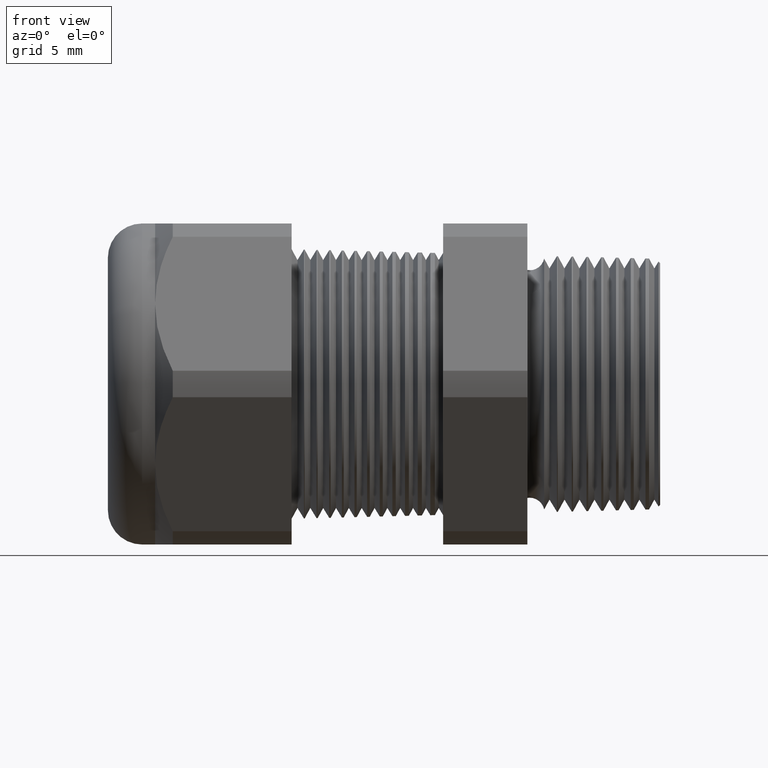
[diagram: clean part render]
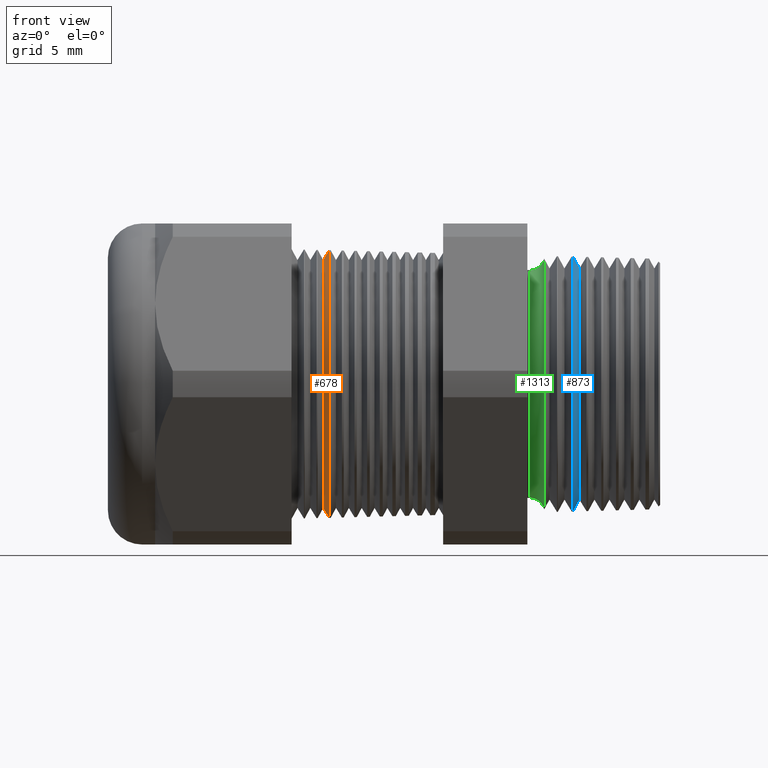
[diagram: same view with three faces highlighted in distinct colors, each labeled with its STEP entity id]
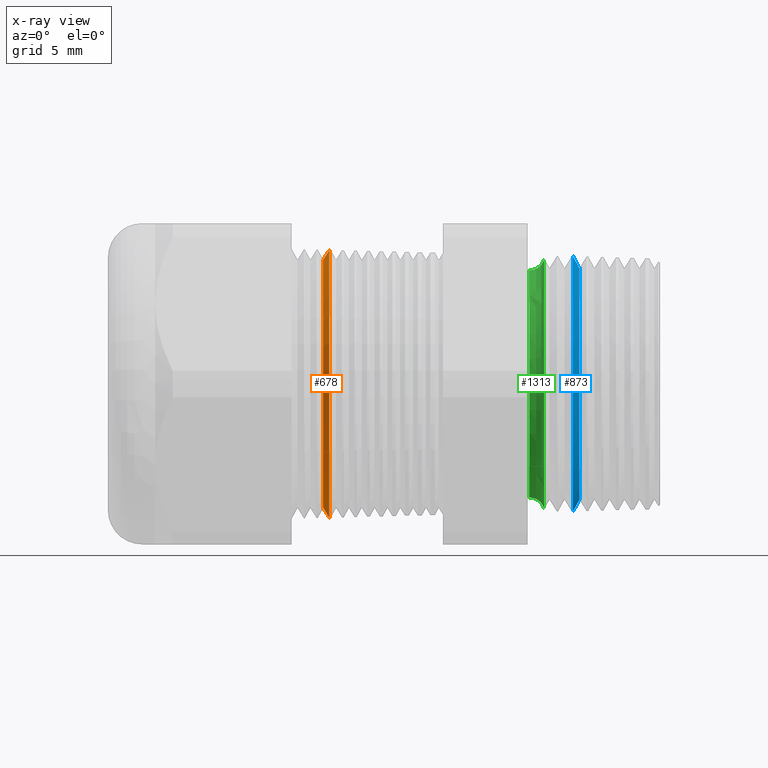
[diagram: x-ray of the same camera — body ghosted, the three highlighted faces saturated]
A machine part, front view with three faces highlighted in distinct colors.
The next image is the same camera in x-ray (body ghosted, the three faces saturated) — at least one of them is partly hidden behind the body in this view.
Their STEP definitions:

[orange] entity #678 — the highlighted conical surface has half-angle 58.5 deg.
#391 = EDGE_CURVE ( 'NONE', #416, #425, #2067, .T. ) ;
#416 = VERTEX_POINT ( 'NONE', #2137 ) ;
#417 = VERTEX_POINT ( 'NONE', #2136 ) ;
#419 = EDGE_CURVE ( 'NONE', #417, #420, #2135, .T. ) ;
#420 = VERTEX_POINT ( 'NONE', #2131 ) ;
#425 = VERTEX_POINT ( 'NONE', #2119 ) ;
#675 = EDGE_CURVE ( 'NONE', #417, #416, #2518, .T. ) ;
#678 = ADVANCED_FACE ( 'NONE', ( #2509 ), #2508, .T. ) ;
#679 = EDGE_LOOP ( 'NONE', ( #680, #681, #682, #683 ) ) ;
#680 = ORIENTED_EDGE ( 'NONE', *, *, #419, .F. ) ;
#681 = ORIENTED_EDGE ( 'NONE', *, *, #675, .T. ) ;
#682 = ORIENTED_EDGE ( 'NONE', *, *, #391, .T. ) ;
#683 = ORIENTED_EDGE ( 'NONE', *, *, #4705, .T. ) ;
#2064 = DIRECTION ( 'NONE',  ( 0.5224985647159348100, 0.0000000000000000000, -0.8526401643541007300 ) ) ;
#2065 = VECTOR ( 'NONE', #2064, 39.37007874015748900 ) ;
#2066 = CARTESIAN_POINT ( 'NONE',  ( -0.7870917547981792800, 0.0000000000000000000, -0.2896307351718082600 ) ) ;
#2067 = LINE ( 'NONE', #2066, #2065 ) ;
#2119 = CARTESIAN_POINT ( 'NONE',  ( -0.7729561197588027400, 3.829445987493595200E-017, -0.3126979950594575600 ) ) ;
#2131 = CARTESIAN_POINT ( 'NONE',  ( -0.7729561197588027400, 0.0000000000000000000, 0.3126979950594575600 ) ) ;
#2132 = DIRECTION ( 'NONE',  ( 0.5224985647159348100, 1.044183048100722500E-016, 0.8526401643541007300 ) ) ;
#2133 = VECTOR ( 'NONE', #2132, 39.37007874015748900 ) ;
#2134 = CARTESIAN_POINT ( 'NONE',  ( -0.7870917547981792800, 3.546953527628497700E-017, 0.2896307351718082600 ) ) ;
#2135 = LINE ( 'NONE', #2134, #2133 ) ;
#2136 = CARTESIAN_POINT ( 'NONE',  ( -0.7870917547981792800, 0.0000000000000000000, 0.2896307351718082600 ) ) ;
#2137 = CARTESIAN_POINT ( 'NONE',  ( -0.7870917547981792800, 3.692536165126864400E-017, -0.2896307351718082600 ) ) ;
#2503 = DIRECTION ( 'NONE',  ( 0.0000000000000000000, 0.0000000000000000000, -1.000000000000000000 ) ) ;
#2504 = DIRECTION ( 'NONE',  ( 1.000000000000000000, 0.0000000000000000000, 0.0000000000000000000 ) ) ;
#2505 = CARTESIAN_POINT ( 'NONE',  ( -0.7870917547981792800, 0.0000000000000000000, 0.0000000000000000000 ) ) ;
#2506 = AXIS2_PLACEMENT_3D ( 'NONE', #2505, #2504, #2503 ) ;
#2508 = CONICAL_SURFACE ( 'NONE', #2506, 0.2896307351718082600, 1.021017612416699200 ) ;
#2509 = FACE_OUTER_BOUND ( 'NONE', #679, .T. ) ;
#2510 = DIRECTION ( 'NONE',  ( 0.0000000000000000000, 0.0000000000000000000, -1.000000000000000000 ) ) ;
#2511 = DIRECTION ( 'NONE',  ( 1.000000000000000000, 0.0000000000000000000, 0.0000000000000000000 ) ) ;
#2512 = CARTESIAN_POINT ( 'NONE',  ( -0.7870917547981792800, 0.0000000000000000000, 0.0000000000000000000 ) ) ;
#2513 = AXIS2_PLACEMENT_3D ( 'NONE', #2512, #2511, #2510 ) ;
#2518 = CIRCLE ( 'NONE', #2513, 0.2896307351718082600 ) ;
#3743 = DIRECTION ( 'NONE',  ( 0.0000000000000000000, 0.0000000000000000000, -1.000000000000000000 ) ) ;
#3744 = DIRECTION ( 'NONE',  ( -1.000000000000000000, 0.0000000000000000000, 0.0000000000000000000 ) ) ;
#3745 = CARTESIAN_POINT ( 'NONE',  ( -0.7729561197588027400, 0.0000000000000000000, 0.0000000000000000000 ) ) ;
#3746 = AXIS2_PLACEMENT_3D ( 'NONE', #3745, #3744, #3743 ) ;
#3751 = CIRCLE ( 'NONE', #3746, 0.3126979950594575600 ) ;
#4705 = EDGE_CURVE ( 'NONE', #425, #420, #3751, .T. ) ;

[blue] entity #873 — the highlighted conical surface has half-angle 61.5 deg.
#818 = EDGE_LOOP ( 'NONE', ( #874, #875, #877, #878 ) ) ;
#873 = ADVANCED_FACE ( 'NONE', ( #2769 ), #2764, .T. ) ;
#874 = ORIENTED_EDGE ( 'NONE', *, *, #946, .F. ) ;
#875 = ORIENTED_EDGE ( 'NONE', *, *, #876, .F. ) ;
#876 = EDGE_CURVE ( 'NONE', #5013, #5011, #2758, .T. ) ;
#877 = ORIENTED_EDGE ( 'NONE', *, *, #950, .T. ) ;
#878 = ORIENTED_EDGE ( 'NONE', *, *, #5067, .T. ) ;
#946 = EDGE_CURVE ( 'NONE', #5011, #947, #2905, .T. ) ;
#947 = VERTEX_POINT ( 'NONE', #2901 ) ;
#950 = EDGE_CURVE ( 'NONE', #5013, #1005, #2895, .T. ) ;
#1005 = VERTEX_POINT ( 'NONE', #2993 ) ;
#2755 = DIRECTION ( 'NONE',  ( 0.0000000000000000000, 0.0000000000000000000, -1.000000000000000000 ) ) ;
#2756 = DIRECTION ( 'NONE',  ( 1.000000000000000000, 0.0000000000000000000, 0.0000000000000000000 ) ) ;
#2757 = AXIS2_PLACEMENT_3D ( 'NONE', #2763, #2756, #2755 ) ;
#2758 = CIRCLE ( 'NONE', #2757, 0.2701319446236517000 ) ;
#2759 = DIRECTION ( 'NONE',  ( 0.0000000000000000000, 0.0000000000000000000, 1.000000000000000000 ) ) ;
#2760 = DIRECTION ( 'NONE',  ( -1.000000000000000000, 0.0000000000000000000, 0.0000000000000000000 ) ) ;
#2761 = CARTESIAN_POINT ( 'NONE',  ( -0.2049999999999999600, 0.0000000000000000000, 0.0000000000000000000 ) ) ;
#2762 = AXIS2_PLACEMENT_3D ( 'NONE', #2761, #2760, #2759 ) ;
#2763 = CARTESIAN_POINT ( 'NONE',  ( -0.1884707356790751900, 0.0000000000000000000, 0.0000000000000000000 ) ) ;
#2764 = CONICAL_SURFACE ( 'NONE', #2762, 0.3005750624174817800, 1.073377489976501400 ) ;
#2769 = FACE_OUTER_BOUND ( 'NONE', #818, .T. ) ;
#2892 = DIRECTION ( 'NONE',  ( -0.4771587602596184000, 0.0000000000000000000, 0.8788171126619600500 ) ) ;
#2893 = VECTOR ( 'NONE', #2892, 39.37007874015747400 ) ;
#2894 = CARTESIAN_POINT ( 'NONE',  ( -0.2049999999999999600, 0.0000000000000000000, 0.3005750624174817800 ) ) ;
#2895 = LINE ( 'NONE', #2894, #2893 ) ;
#2901 = CARTESIAN_POINT ( 'NONE',  ( -0.2034856000580643200, 3.647304855553810500E-017, -0.2977858846946140300 ) ) ;
#2902 = DIRECTION ( 'NONE',  ( -0.4771587602596184000, 1.076240564057388400E-016, -0.8788171126619600500 ) ) ;
#2903 = VECTOR ( 'NONE', #2902, 39.37007874015747400 ) ;
#2904 = CARTESIAN_POINT ( 'NONE',  ( -0.2049999999999999600, 3.680982880930849200E-017, -0.3005750624174817800 ) ) ;
#2905 = LINE ( 'NONE', #2904, #2903 ) ;
#2993 = CARTESIAN_POINT ( 'NONE',  ( -0.2034856000580643200, 0.0000000000000000000, 0.2977858846946139800 ) ) ;
#4343 = CARTESIAN_POINT ( 'NONE',  ( -0.1884707356790751900, 0.0000000000000000000, 0.2701319446236517000 ) ) ;
#4344 = CARTESIAN_POINT ( 'NONE',  ( -0.1884707356790751900, 3.477493759266634500E-017, -0.2701319446236517000 ) ) ;
#4434 = DIRECTION ( 'NONE',  ( 0.0000000000000000000, 0.0000000000000000000, 1.000000000000000000 ) ) ;
#4435 = DIRECTION ( 'NONE',  ( 1.000000000000000000, 0.0000000000000000000, 0.0000000000000000000 ) ) ;
#4436 = CARTESIAN_POINT ( 'NONE',  ( -0.2034856000580643200, 0.0000000000000000000, 0.0000000000000000000 ) ) ;
#4437 = AXIS2_PLACEMENT_3D ( 'NONE', #4436, #4435, #4434 ) ;
#4438 = CIRCLE ( 'NONE', #4437, 0.2977858846946139800 ) ;
#5011 = VERTEX_POINT ( 'NONE', #4344 ) ;
#5013 = VERTEX_POINT ( 'NONE', #4343 ) ;
#5067 = EDGE_CURVE ( 'NONE', #1005, #947, #4438, .T. ) ;

[green] entity #1313 — the highlighted toroidal blend (fillet) surface has major radius 7.6346 mm and minor (blend) radius 0.889 mm.
#240 = EDGE_CURVE ( 'NONE', #1251, #1278, #1737, .T. ) ;
#387 = ORIENTED_EDGE ( 'NONE', *, *, #240, .F. ) ;
#1251 = VERTEX_POINT ( 'NONE', #3423 ) ;
#1277 = EDGE_CURVE ( 'NONE', #1278, #1279, #3464, .T. ) ;
#1278 = VERTEX_POINT ( 'NONE', #3460 ) ;
#1279 = VERTEX_POINT ( 'NONE', #3459 ) ;
#1282 = VERTEX_POINT ( 'NONE', #3453 ) ;
#1307 = ORIENTED_EDGE ( 'NONE', *, *, #1309, .T. ) ;
#1308 = ORIENTED_EDGE ( 'NONE', *, *, #1277, .F. ) ;
#1309 = EDGE_CURVE ( 'NONE', #1282, #1279, #3504, .T. ) ;
#1310 = ORIENTED_EDGE ( 'NONE', *, *, #1319, .T. ) ;
#1313 = ADVANCED_FACE ( 'NONE', ( #3494 ), #3493, .F. ) ;
#1314 = EDGE_LOOP ( 'NONE', ( #1310, #1307, #1308, #387 ) ) ;
#1319 = EDGE_CURVE ( 'NONE', #1251, #1282, #3482, .T. ) ;
#1733 = DIRECTION ( 'NONE',  ( 0.0000000000000000000, 0.0000000000000000000, 1.000000000000000000 ) ) ;
#1734 = DIRECTION ( 'NONE',  ( 1.000000000000000000, 0.0000000000000000000, 0.0000000000000000000 ) ) ;
#1735 = CARTESIAN_POINT ( 'NONE',  ( -0.2708463023710462300, 0.0000000000000000000, 0.0000000000000000000 ) ) ;
#1736 = AXIS2_PLACEMENT_3D ( 'NONE', #1735, #1734, #1733 ) ;
#1737 = CIRCLE ( 'NONE', #1736, 0.2929249030550887800 ) ;
#3423 = CARTESIAN_POINT ( 'NONE',  ( -0.2708463023710462300, 0.0000000000000000000, 0.2929249030550887800 ) ) ;
#3453 = CARTESIAN_POINT ( 'NONE',  ( -0.3049999999999999400, 3.252356501229276600E-017, 0.2655750624174818000 ) ) ;
#3459 = CARTESIAN_POINT ( 'NONE',  ( -0.3049999999999999400, 0.0000000000000000000, -0.2655750624174818000 ) ) ;
#3460 = CARTESIAN_POINT ( 'NONE',  ( -0.2708463023710462300, 3.587295449169631900E-017, -0.2929249030550887800 ) ) ;
#3461 = DIRECTION ( 'NONE',  ( 0.0000000000000000000, 0.0000000000000000000, -1.000000000000000000 ) ) ;
#3462 = DIRECTION ( 'NONE',  ( 0.0000000000000000000, -1.000000000000000000, 0.0000000000000000000 ) ) ;
#3463 = AXIS2_PLACEMENT_3D ( 'NONE', #3469, #3462, #3461 ) ;
#3464 = CIRCLE ( 'NONE', #3463, 0.03499999999999996900 ) ;
#3469 = CARTESIAN_POINT ( 'NONE',  ( -0.3049999999999999400, 0.0000000000000000000, -0.3005750624174817800 ) ) ;
#3482 = CIRCLE ( 'NONE', #3544, 0.03499999999999996900 ) ;
#3489 = DIRECTION ( 'NONE',  ( 0.0000000000000000000, 0.0000000000000000000, -1.000000000000000000 ) ) ;
#3490 = DIRECTION ( 'NONE',  ( 1.000000000000000000, 0.0000000000000000000, 0.0000000000000000000 ) ) ;
#3491 = CARTESIAN_POINT ( 'NONE',  ( -0.3049999999999999400, 0.0000000000000000000, 0.0000000000000000000 ) ) ;
#3492 = AXIS2_PLACEMENT_3D ( 'NONE', #3491, #3490, #3489 ) ;
#3493 = TOROIDAL_SURFACE ( 'NONE', #3492, 0.3005750624174817800, 0.03499999999999994800 ) ;
#3494 = FACE_OUTER_BOUND ( 'NONE', #1314, .T. ) ;
#3500 = DIRECTION ( 'NONE',  ( 0.0000000000000000000, 0.0000000000000000000, -1.000000000000000000 ) ) ;
#3501 = DIRECTION ( 'NONE',  ( 1.000000000000000000, 0.0000000000000000000, 0.0000000000000000000 ) ) ;
#3502 = CARTESIAN_POINT ( 'NONE',  ( -0.3049999999999999400, 0.0000000000000000000, 0.0000000000000000000 ) ) ;
#3503 = AXIS2_PLACEMENT_3D ( 'NONE', #3502, #3501, #3500 ) ;
#3504 = CIRCLE ( 'NONE', #3503, 0.2655750624174818000 ) ;
#3541 = DIRECTION ( 'NONE',  ( 0.0000000000000000000, 1.224646799147352700E-016, 1.000000000000000000 ) ) ;
#3542 = DIRECTION ( 'NONE',  ( 0.0000000000000000000, 1.000000000000000000, -1.224646799147353200E-016 ) ) ;
#3543 = CARTESIAN_POINT ( 'NONE',  ( -0.3049999999999999400, 3.680982880930849200E-017, 0.3005750624174817800 ) ) ;
#3544 = AXIS2_PLACEMENT_3D ( 'NONE', #3543, #3542, #3541 ) ;